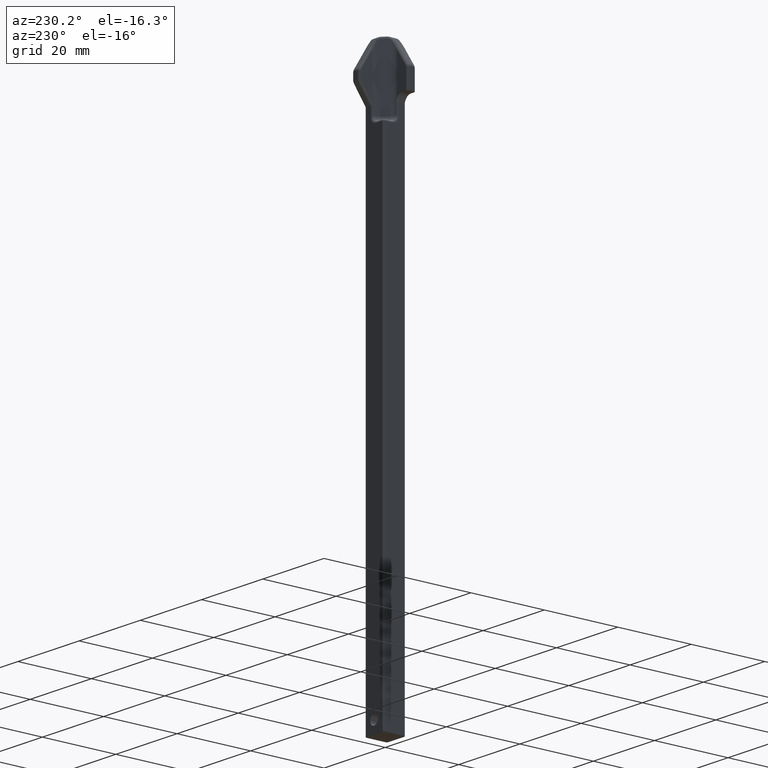
[diagram: clean part render]
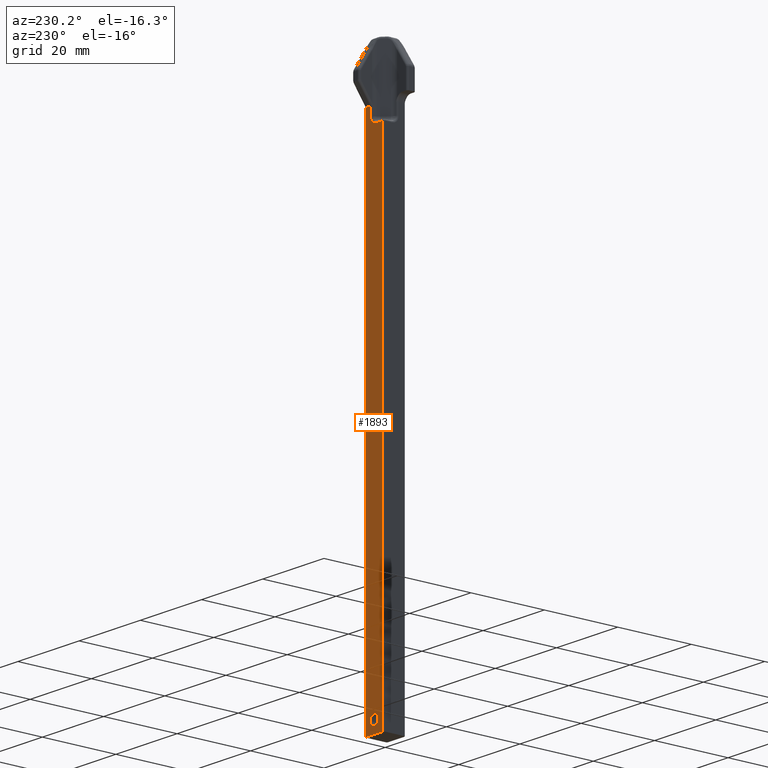
[diagram: same view with one face highlighted and labeled with its STEP entity id]
A machine part, auxiliary view. The second image highlights one B-rep face of the part: STEP entity #1893.
In plain terms, the highlighted planar face has unit normal (0, 1, 0).
Its self-contained STEP definition (entity closure, byte-faithful):
#7=DIRECTION('',(-1.E0,0.E0,0.E0));
#8=VECTOR('',#7,2.07E-1);
#9=CARTESIAN_POINT('',(1.035E-1,1.185E-1,-3.76E0));
#10=LINE('',#9,#8);
#42=DIRECTION('',(0.E0,0.E0,-1.E0));
#43=VECTOR('',#42,5.401526192757E0);
#44=CARTESIAN_POINT('',(1.035E-1,1.185E-1,1.641526192757E0));
#45=LINE('',#44,#43);
#285=CARTESIAN_POINT('',(0.E0,1.185E-1,-3.634E0));
#286=DIRECTION('',(0.E0,1.E0,0.E0));
#287=DIRECTION('',(-1.E0,0.E0,0.E0));
#288=AXIS2_PLACEMENT_3D('',#285,#286,#287);
#290=CARTESIAN_POINT('',(0.E0,1.185E-1,-3.634E0));
#291=DIRECTION('',(0.E0,1.E0,0.E0));
#292=DIRECTION('',(1.E0,0.E0,0.E0));
#293=AXIS2_PLACEMENT_3D('',#290,#291,#292);
#295=DIRECTION('',(-9.999999999973E-1,5.313574498648E-7,-2.262021059606E-6));
#296=VECTOR('',#295,4.988188671437E-2);
#297=CARTESIAN_POINT('',(9.75E-2,1.185E-1,1.64E0));
#298=LINE('',#297,#296);
#299=CARTESIAN_POINT('',(4.591010959023E-2,1.185E-1,1.640120715924E0));
#300=CARTESIAN_POINT('',(4.619345376498E-2,1.185E-1,1.640080173232E0));
#301=CARTESIAN_POINT('',(4.676293062486E-2,1.184999867474E-1,1.640019459755E0));
#302=CARTESIAN_POINT('',(4.733140176206E-2,1.185000265051E-1,1.639999902291E0));
#303=CARTESIAN_POINT('',(4.761811328577E-2,1.185000265051E-1,1.639999887166E0));
#305=DIRECTION('',(-1.530579098259E-11,-7.214569248846E-7,-9.999999999997E-1));
#306=VECTOR('',#305,9.012071593940E-2);
#307=CARTESIAN_POINT('',(4.591010959023E-2,1.185E-1,1.640120715924E0));
#308=LINE('',#307,#306);
#309=CARTESIAN_POINT('',(4.591010958885E-2,1.184999349818E-1,1.549999999985E0));
#310=CARTESIAN_POINT('',(4.591116176796E-2,1.185001955482E-1,1.545463608490E0));
#311=CARTESIAN_POINT('',(4.500806829303E-2,1.184999092457E-1,1.536956443916E0));
#312=CARTESIAN_POINT('',(4.178286579469E-2,1.185000243179E-1,1.525884723282E0));
#313=CARTESIAN_POINT('',(3.731591573195E-2,1.184999934828E-1,1.516495598867E0));
#314=CARTESIAN_POINT('',(3.209363476514E-2,1.185000017508E-1,1.508675331508E0));
#315=CARTESIAN_POINT('',(2.646472268362E-2,1.184999995141E-1,1.502252731444E0));
#316=CARTESIAN_POINT('',(2.068241783592E-2,1.185000001927E-1,1.497051934769E0));
#317=CARTESIAN_POINT('',(1.493057525998E-2,1.184999997149E-1,1.492902191200E0));
#318=CARTESIAN_POINT('',(9.326416760350E-3,1.185000009476E-1,1.489636221821E0));
#319=CARTESIAN_POINT('',(3.945674067750E-3,1.184999964945E-1,1.487106185757E0));
#320=CARTESIAN_POINT('',(-1.133258027022E-3,1.185000130743E-1,
1.485193378202E0));
#321=CARTESIAN_POINT('',(-5.832958448642E-3,1.184999512084E-1,
1.483791311676E0));
#322=CARTESIAN_POINT('',(-8.672853539051E-3,1.185001051308E-1,
1.483128662756E0));
#323=CARTESIAN_POINT('',(-1.001828997341E-2,1.185001012854E-1,
1.482848633789E0));
#325=CARTESIAN_POINT('',(-1.001828997341E-2,1.185001012854E-1,
1.482848633789E0));
#326=CARTESIAN_POINT('',(-1.451352367940E-2,1.184999799935E-1,
1.481913285884E0));
#327=CARTESIAN_POINT('',(-2.366493563094E-2,1.185000340816E-1,
1.480494681102E0));
#328=CARTESIAN_POINT('',(-3.314797618758E-2,1.184999518433E-1,
1.479999970681E0));
#329=CARTESIAN_POINT('',(-3.797160876896E-2,1.185000021581E-1,1.48E0));
#331=DIRECTION('',(-9.999999999964E-1,-4.966598722254E-8,-2.698896165958E-6));
#332=VECTOR('',#331,6.552839485008E-2);
#333=CARTESIAN_POINT('',(-3.797160876896E-2,1.185000021581E-1,1.48E0));
#334=LINE('',#333,#332);
#335=DIRECTION('',(6.906099706125E-10,2.092454778852E-10,-1.E0));
#336=VECTOR('',#335,5.239999823146E0);
#337=CARTESIAN_POINT('',(-1.035000036188E-1,1.184999989036E-1,
1.479999823146E0));
#338=LINE('',#337,#336);
#339=CARTESIAN_POINT('',(9.75E-2,1.185E-1,1.64E0));
#340=CARTESIAN_POINT('',(9.962432194699E-2,1.185E-1,1.64E0));
#341=CARTESIAN_POINT('',(1.016151080532E-1,1.185E-1,1.640546434581E0));
#342=CARTESIAN_POINT('',(1.035E-1,1.185E-1,1.641526192757E0));
#1141=CARTESIAN_POINT('',(1.035E-1,1.185E-1,-3.76E0));
#1143=VERTEX_POINT('',#1141);
#1146=CARTESIAN_POINT('',(-1.035E-1,1.185E-1,-3.76E0));
#1148=VERTEX_POINT('',#1146);
#1177=VERTEX_POINT('',#309);
#1178=VERTEX_POINT('',#323);
#1179=CARTESIAN_POINT('',(-3.797160876896E-2,1.185000021581E-1,1.48E0));
#1180=CARTESIAN_POINT('',(-1.035000036188E-1,1.184999989036E-1,
1.479999823146E0));
#1181=VERTEX_POINT('',#1179);
#1182=VERTEX_POINT('',#1180);
#1211=CARTESIAN_POINT('',(-5.1E-2,1.185E-1,-3.634E0));
#1212=CARTESIAN_POINT('',(5.1E-2,1.185E-1,-3.634E0));
#1213=VERTEX_POINT('',#1211);
#1214=VERTEX_POINT('',#1212);
#1282=CARTESIAN_POINT('',(9.75E-2,1.185E-1,1.64E0));
#1283=VERTEX_POINT('',#1282);
#1340=VERTEX_POINT('',#299);
#1341=VERTEX_POINT('',#303);
#1343=VERTEX_POINT('',#342);
#1864=CARTESIAN_POINT('',(1.185E-1,1.185E-1,-3.76E0));
#1865=DIRECTION('',(0.E0,1.E0,0.E0));
#1866=DIRECTION('',(-1.E0,0.E0,0.E0));
#1867=AXIS2_PLACEMENT_3D('',#1864,#1865,#1866);
#1868=PLANE('',#1867);
#1869=ORIENTED_EDGE('',*,*,#1377,.F.);
#1871=ORIENTED_EDGE('',*,*,#1870,.F.);
#1873=ORIENTED_EDGE('',*,*,#1872,.T.);
#1875=ORIENTED_EDGE('',*,*,#1874,.F.);
#1877=ORIENTED_EDGE('',*,*,#1876,.T.);
#1879=ORIENTED_EDGE('',*,*,#1878,.T.);
#1881=ORIENTED_EDGE('',*,*,#1880,.T.);
#1883=ORIENTED_EDGE('',*,*,#1882,.T.);
#1885=ORIENTED_EDGE('',*,*,#1884,.T.);
#1886=ORIENTED_EDGE('',*,*,#1351,.F.);
#1887=EDGE_LOOP('',(#1869,#1871,#1873,#1875,#1877,#1879,#1881,#1883,#1885,
#1886));
#1888=FACE_OUTER_BOUND('',#1887,.F.);
#1889=ORIENTED_EDGE('',*,*,#1844,.T.);
#1890=ORIENTED_EDGE('',*,*,#1858,.T.);
#1891=EDGE_LOOP('',(#1889,#1890));
#1892=FACE_BOUND('',#1891,.F.);
#1893=ADVANCED_FACE('',(#1888,#1892),#1868,.T.);
#289=CIRCLE('',#288,5.1E-2);
#294=CIRCLE('',#293,5.1E-2);
#304=B_SPLINE_CURVE_WITH_KNOTS('',3,(#299,#300,#301,#302,#303),.UNSPECIFIED.,
.F.,.F.,(4,1,4),(0.E0,5.E-1,1.E0),.UNSPECIFIED.);
#324=B_SPLINE_CURVE_WITH_KNOTS('',3,(#309,#310,#311,#312,#313,#314,#315,#316,
#317,#318,#319,#320,#321,#322,#323),.UNSPECIFIED.,.F.,.F.,(4,1,1,1,1,1,1,1,1,1,
1,1,4),(0.E0,8.333333333333E-2,1.666666666667E-1,2.5E-1,3.333333333333E-1,
4.166666666667E-1,5.E-1,5.833333333333E-1,6.666666666667E-1,7.5E-1,
8.333333333333E-1,9.166666666667E-1,1.E0),.UNSPECIFIED.);
#330=B_SPLINE_CURVE_WITH_KNOTS('',3,(#325,#326,#327,#328,#329),.UNSPECIFIED.,
.F.,.F.,(4,1,4),(0.E0,5.E-1,1.E0),.UNSPECIFIED.);
#343=B_SPLINE_CURVE_WITH_KNOTS('',3,(#339,#340,#341,#342),.UNSPECIFIED.,.F.,.F.,
(4,4),(0.E0,1.E0),.UNSPECIFIED.);
#1351=EDGE_CURVE('',#1143,#1148,#10,.T.);
#1377=EDGE_CURVE('',#1343,#1143,#45,.T.);
#1844=EDGE_CURVE('',#1213,#1214,#289,.T.);
#1858=EDGE_CURVE('',#1214,#1213,#294,.T.);
#1870=EDGE_CURVE('',#1283,#1343,#343,.T.);
#1872=EDGE_CURVE('',#1283,#1341,#298,.T.);
#1874=EDGE_CURVE('',#1340,#1341,#304,.T.);
#1876=EDGE_CURVE('',#1340,#1177,#308,.T.);
#1878=EDGE_CURVE('',#1177,#1178,#324,.T.);
#1880=EDGE_CURVE('',#1178,#1181,#330,.T.);
#1882=EDGE_CURVE('',#1181,#1182,#334,.T.);
#1884=EDGE_CURVE('',#1182,#1148,#338,.T.);